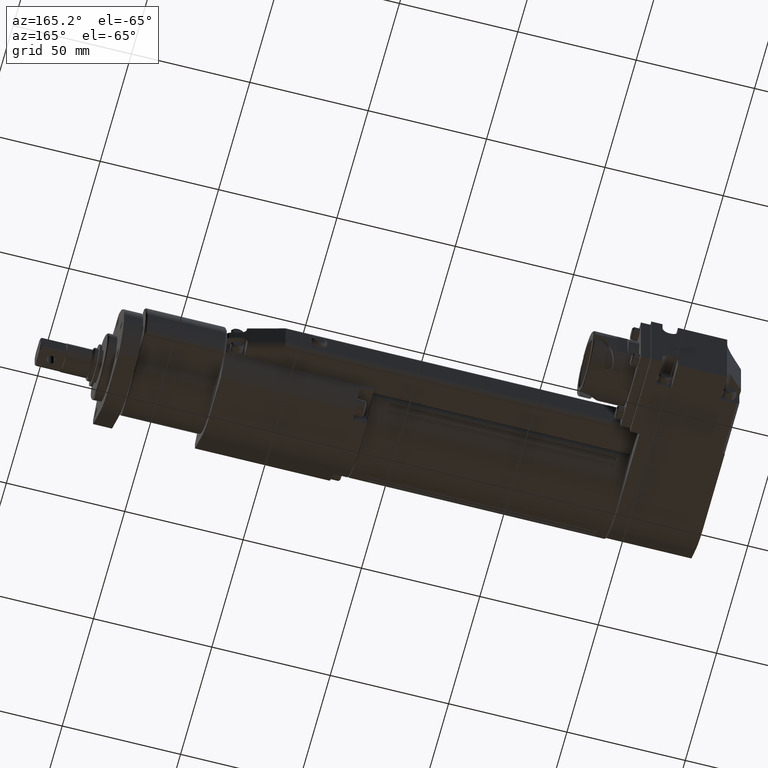
[diagram: clean part render]
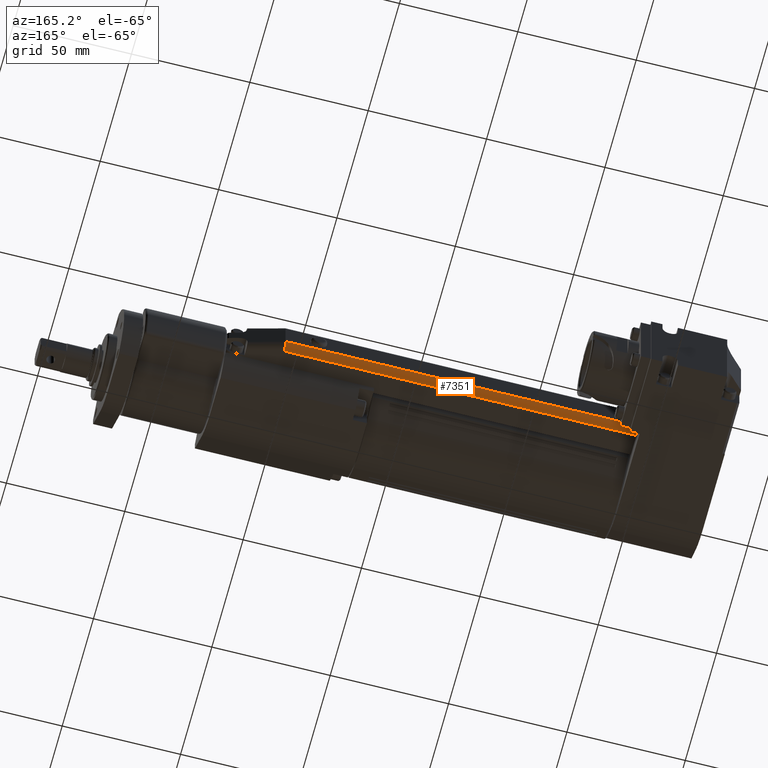
[diagram: same view with one face highlighted and labeled with its STEP entity id]
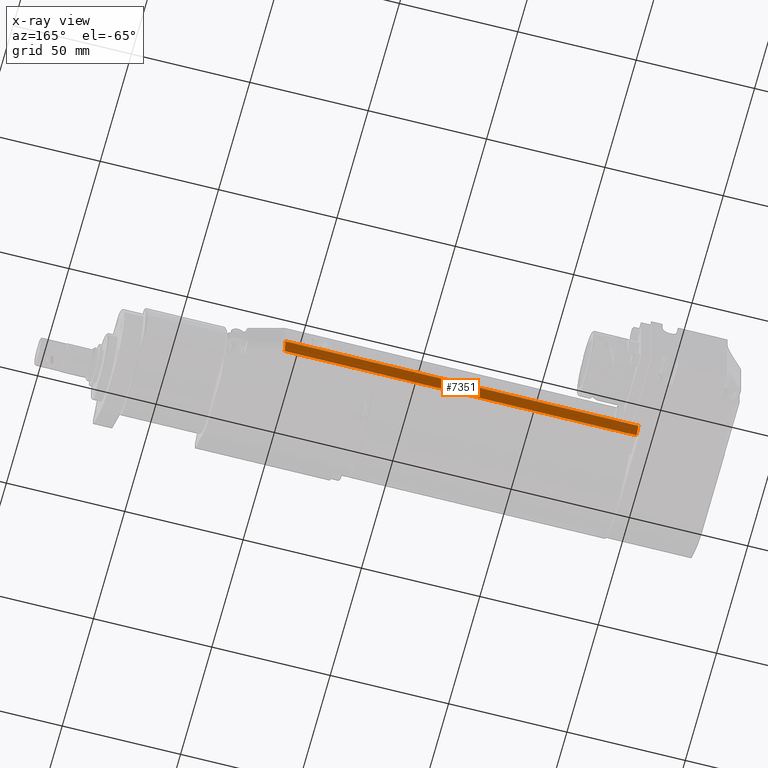
[diagram: x-ray of the same camera — body ghosted, the highlighted face saturated]
A machine part, auxiliary view. The second image highlights one B-rep face of the part: STEP entity #7351.
The next image is the same camera in x-ray: the body ghosted, the highlighted face saturated — about 0% of this face is hidden behind the body in this view.
In plain terms, the highlighted cylindrical surface (edge-blend (fillet) strip) has radius 3 mm, axis along (-1, -0, 0).
Its self-contained STEP definition (entity closure, byte-faithful):
#411 = CARTESIAN_POINT ( 'NONE',  ( -95.99940879129661700, 30.00000000000000400, -6.000000000000000000 ) ) ;
#767 = DIRECTION ( 'NONE',  ( 0.0000000000000000000, 0.0000000000000000000, -1.000000000000000000 ) ) ;
#1223 = EDGE_CURVE ( 'NONE', #1662, #3228, #12427, .T. ) ;
#1662 = VERTEX_POINT ( 'NONE', #2551 ) ;
#1916 = VECTOR ( 'NONE', #6529, 1000.000000000000000 ) ;
#2551 = CARTESIAN_POINT ( 'NONE',  ( -96.39436628405879000, 30.00000000000000400, -9.000000000000000000 ) ) ;
#3228 = VERTEX_POINT ( 'NONE', #12842 ) ;
#3407 = VERTEX_POINT ( 'NONE', #10807 ) ;
#3868 = LINE ( 'NONE', #13327, #12619 ) ;
#4742 = ORIENTED_EDGE ( 'NONE', *, *, #5042, .F. ) ;
#5016 = CARTESIAN_POINT ( 'NONE',  ( -96.39436628405879000, 30.00000000000000400, -9.000000000000000000 ) ) ;
#5042 = EDGE_CURVE ( 'NONE', #3228, #9809, #3868, .T. ) ;
#5533 = FACE_OUTER_BOUND ( 'NONE', #6080, .T. ) ;
#6080 = EDGE_LOOP ( 'NONE', ( #7521, #4742, #6086, #8240 ) ) ;
#6086 = ORIENTED_EDGE ( 'NONE', *, *, #1223, .F. ) ;
#6136 = EDGE_CURVE ( 'NONE', #9809, #3407, #13291, .T. ) ;
#6492 = DIRECTION ( 'NONE',  ( -1.000000000000000000, -1.397087188906787600E-016, 0.0000000000000000000 ) ) ;
#6529 = DIRECTION ( 'NONE',  ( 1.000000000000000000, 1.397087188906787600E-016, -0.0000000000000000000 ) ) ;
#7249 = DIRECTION ( 'NONE',  ( 0.0000000000000000000, -1.000000000000000000, 0.0000000000000000000 ) ) ;
#7351 = ADVANCED_FACE ( 'NONE', ( #5533 ), #13950, .T. ) ;
#7521 = ORIENTED_EDGE ( 'NONE', *, *, #6136, .F. ) ;
#7598 = DIRECTION ( 'NONE',  ( -1.000000000000000000, -0.0000000000000000000, 0.0000000000000000000 ) ) ;
#7657 = EDGE_CURVE ( 'NONE', #3407, #1662, #8029, .T. ) ;
#7675 = CARTESIAN_POINT ( 'NONE',  ( -74.00000000000000000, 30.00000000000000700, -9.000000000000000000 ) ) ;
#8029 = LINE ( 'NONE', #7675, #1916 ) ;
#8240 = ORIENTED_EDGE ( 'NONE', *, *, #7657, .F. ) ;
#9511 = DIRECTION ( 'NONE',  ( -1.000000000000000000, -1.397087188906787600E-016, 0.0000000000000000000 ) ) ;
#9557 = CARTESIAN_POINT ( 'NONE',  ( -95.99940879129661700, 33.00000000000000700, -7.757359312880712600 ) ) ;
#9672 = AXIS2_PLACEMENT_3D ( 'NONE', #411, #9511, #7249 ) ;
#9809 = VERTEX_POINT ( 'NONE', #10007 ) ;
#10007 = CARTESIAN_POINT ( 'NONE',  ( -245.0000000000000300, 32.99999999999997900, -6.000000000000000000 ) ) ;
#10692 = CARTESIAN_POINT ( 'NONE',  ( -96.16300554135959500, 31.75735931288072000, -9.000000000000001800 ) ) ;
#10807 = CARTESIAN_POINT ( 'NONE',  ( -245.0000000000000300, 29.99999999999998200, -9.000000000000000000 ) ) ;
#12427 =( BOUNDED_CURVE ( )  B_SPLINE_CURVE ( 3, ( #5016, #10692, #9557, #13005 ),
 .UNSPECIFIED., .F., .F. ) 
 B_SPLINE_CURVE_WITH_KNOTS ( ( 4, 4 ),
 ( 1.570796326794896600, 3.141592653589793100 ),
 .UNSPECIFIED. ) 
 CURVE ( )  GEOMETRIC_REPRESENTATION_ITEM ( )  RATIONAL_B_SPLINE_CURVE ( ( 1.000000000000000000, 0.8047378541243649400, 0.8047378541243649400, 1.000000000000000000 ) ) 
 REPRESENTATION_ITEM ( '' )  );
#12619 = VECTOR ( 'NONE', #6492, 1000.000000000000000 ) ;
#12842 = CARTESIAN_POINT ( 'NONE',  ( -95.99940879129661700, 33.00000000000000000, -6.000000000000000000 ) ) ;
#13005 = CARTESIAN_POINT ( 'NONE',  ( -95.99940879129661700, 33.00000000000000000, -6.000000000000000000 ) ) ;
#13291 = CIRCLE ( 'NONE', #14833, 3.000000000000000900 ) ;
#13327 = CARTESIAN_POINT ( 'NONE',  ( -95.99940879129661700, 33.00000000000000000, -6.000000000000000000 ) ) ;
#13950 = CYLINDRICAL_SURFACE ( 'NONE', #9672, 2.999999999999999100 ) ;
#14469 = CARTESIAN_POINT ( 'NONE',  ( -245.0000000000000300, 29.99999999999998200, -6.000000000000000000 ) ) ;
#14833 = AXIS2_PLACEMENT_3D ( 'NONE', #14469, #7598, #767 ) ;